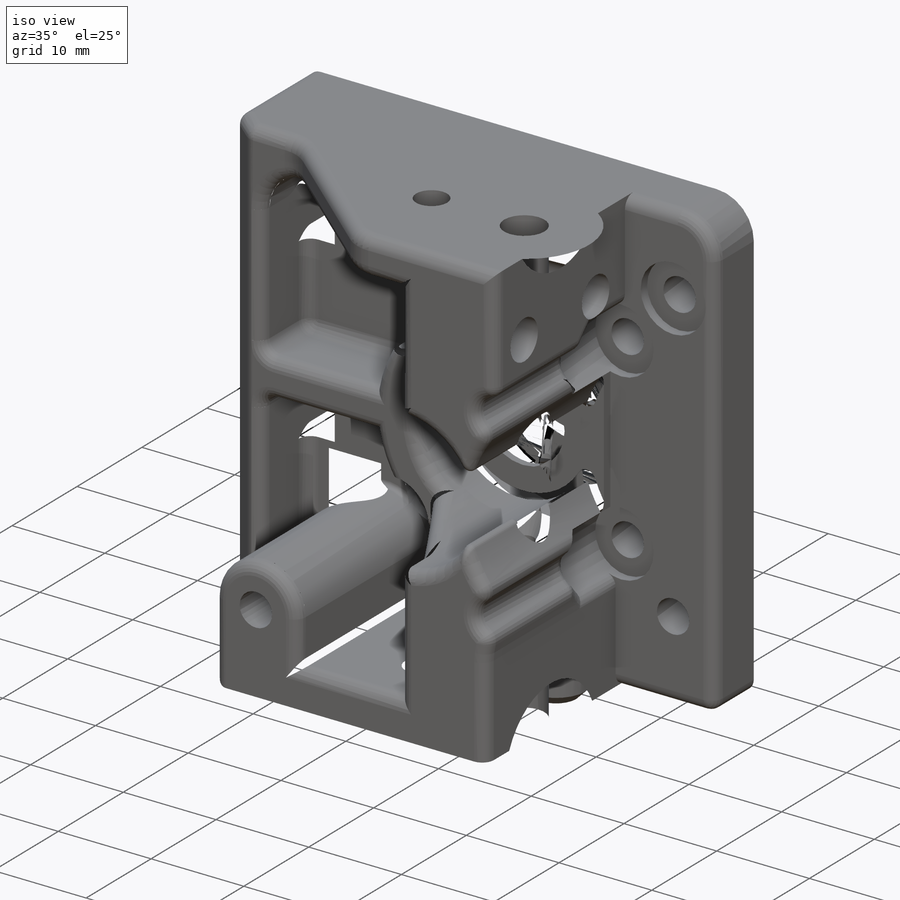
[diagram: iso view]
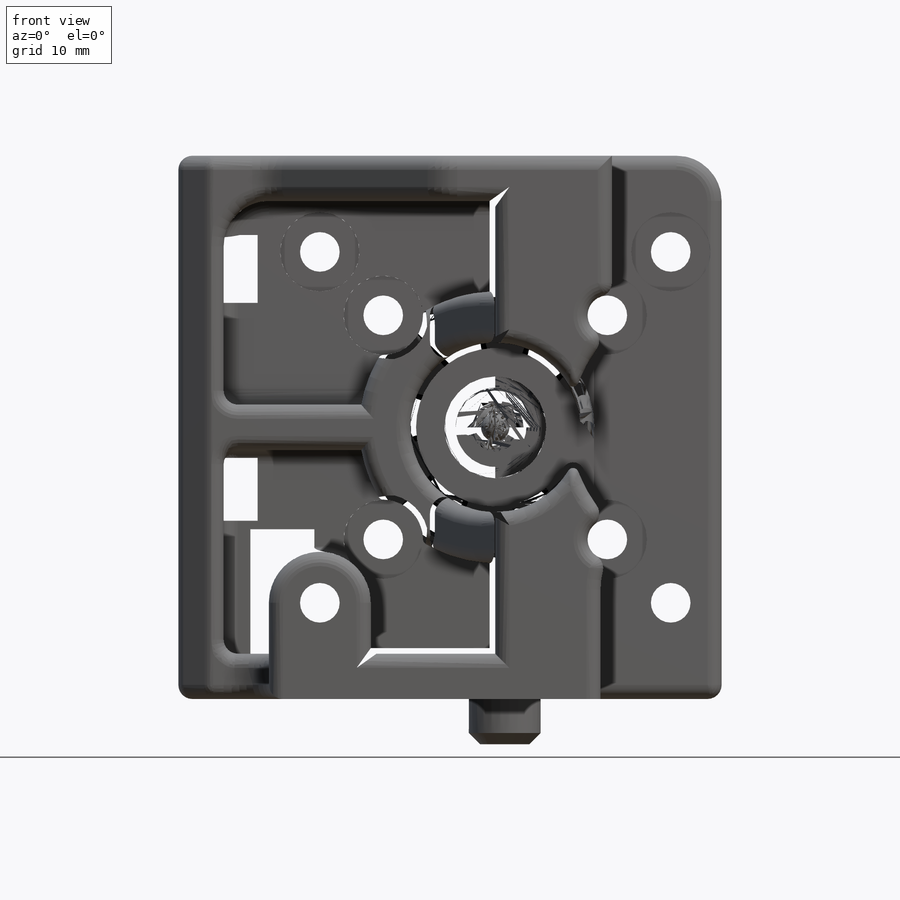
[diagram: front view]
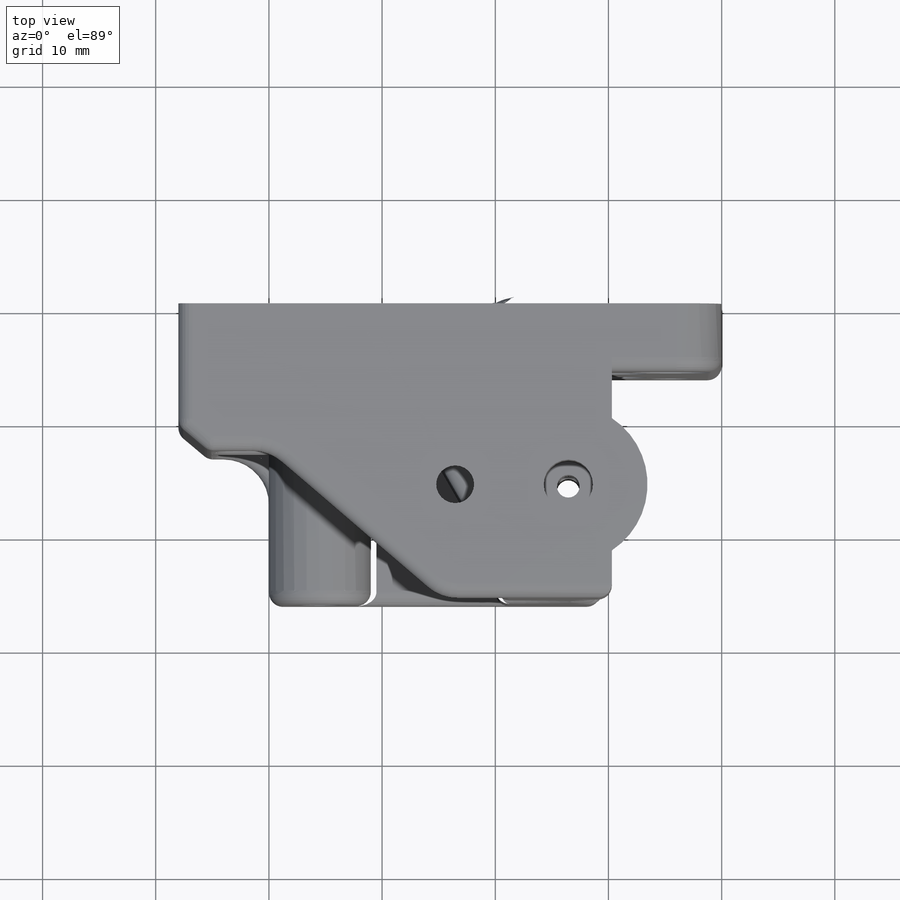
[diagram: top view]
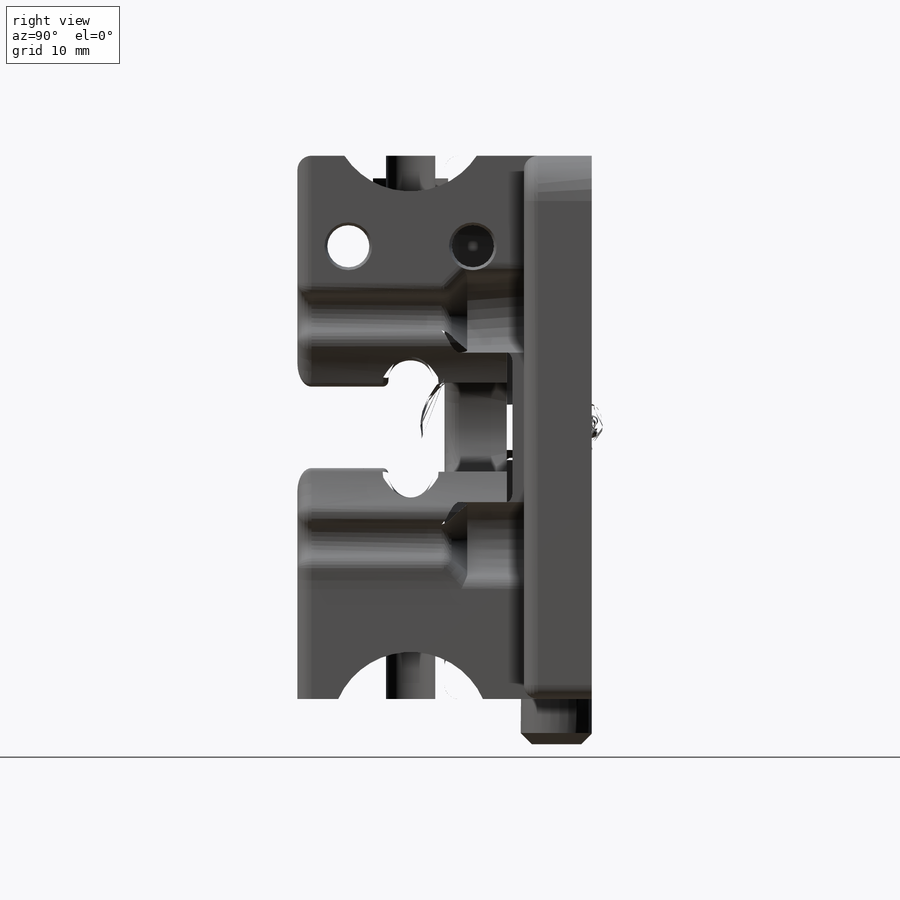
[diagram: right view]
SOLIDWORKS PART (.sldprt)
format: sldprt  version: not decoded by parser v0  size: 1,954,304 bytes
history: native  units: mm
features: sketch x25, cut_extrude x18, fillet x6, extrude x3, plane x2, cut_revolve x2, chamfer x2, revolve x2, material x1 (+13 scaffold rows collapsed)
feature tree (74):
  scaffold x13  (default folders/planes/origin — collapsed)
  material  "ABS"
  sketch  "Sketch1"  dims[c1.D1=4.0mm c1.D2=40.0mm c1.D3=24.0mm c1.D4=44.0mm c1.D5=20.0mm c2.D2=48.0mm c2.D1=4.0mm]
  extrude  "Boss-Extrude1"  Depth=26mm
  sketch  "Sketch2"  dims[c1.D2=24.0mm c1.D6=28.0mm c1.D8=7.0mm c1.D9=28.0mm c1.D10=~4.070553mm c1.D11=3.5mm c1.D12=9.0mm c1.D13=12.5mm c1.D14=23.0mm c1.D15=18.15mm c1.D1=24.0mm c1.D3=4.0mm c1.D4=2.0mm c1.D5=10.3mm c1.D7=44.0mm c2.D7=45.0deg c2.D9=15.5mm c2.D10=15.5mm c2.D15=18.15mm c2.D13=10.7mm c2.D16=1.2mm c2.D17=4.0mm]
  cut_extrude  "Cut-Extrude1"  Depth=6mm
  sketch  "Sketch3"  dims[c1.D3=3.5mm c1.D4=28.0mm c1.D5=28.0mm c2.D4=28.0mm c2.D5=3.5mm c2.D1=31.0mm c2.D2=31.0mm c2.D6=4.0]
  cut_extrude  "Cut-Extrude2"  [1 undecoded]
  plane  "Plane1"
  sketch  "Sketch6"  dims[D1=7.0mm D2=~6.366368mm]
  cut_extrude  "Cut-Extrude3"  Depth=5mm
  sketch  "Sketch7"
  cut_extrude  "Cut-Extrude4"  Depth=5mm
  sketch  "Sketch9"
  extrude  "Boss-Extrude4"  Depth=19mm
  sketch  "Sketch4"  dims[c1.D1=11.5mm c1.D2=2.2mm c1.D3=~3.709462mm c2.D3=120.0deg c2.D4=4.5mm c2.D5=7.5mm c2.D6=19.0mm]
  cut_revolve  "Cut-Revolve1"  Angle=360deg
  sketch  "Sketch10"  dims[D2=2.0mm D1=6.45mm]
  cut_extrude  "Cut-Extrude5"  [1 undecoded]
  plane  "Plane3"
  sketch  "Sketch11"  dims[c1.D1=~3.372254mm c2.D1=155.0deg c2.D2=2.0mm c2.D3=4.5mm]
  cut_revolve  "Cut-Revolve4"  Angle=360deg
  sketch  "Sketch12"  dims[D1=3.5mm D2=4.5mm]
  cut_extrude  "Cut-Extrude6"  [1 undecoded]
  sketch  "Sketch13"  dims[D1=5.75mm]
  cut_extrude  "Cut-Extrude7"  Depth=3mm
  sketch  "Sketch14"  dims[c1.D1=4.35mm c1.D2=3.35mm c1.D3=4.35mm c2.D1=~4.022309mm c2.D3=10.0mm]
  cut_extrude  "Cut-Extrude8"  Depth=10mm
  sketch  "Sketch25"
  cut_extrude  "Cut-Extrude16"  Depth=10mm
  sketch  "Sketch15"  dims[D1=5.75mm]
  cut_extrude  "Cut-Extrude9"  Depth=2mm
  sketch  "Sketch21"  dims[D1=7.0mm]
  cut_extrude  "Cut-Extrude14"  Depth=1mm
  sketch  "Sketch22"  dims[D1=12.0mm D2=38.0mm D3=10.0mm]
  cut_extrude  "Cut-Extrude15"  Depth=13mm
  sketch  "Sketch28"
  cut_extrude  "Cut-Extrude18"  [1 undecoded]
  sketch  "Sketch32"
  cut_extrude  "Cut-Extrude21"  [1 undecoded]
  fillet  "Fillet10"  Radius=4mm
  chamfer  "Chamfer1"  Distance=9.5mm Angle=30deg
  fillet  "Fillet6"  Radius=4mm
  fillet  "Fillet8"  Radius=1.25mm
  fillet  "Fillet9"  Radius=0.5mm
  sketch  "Sketch23"  dims[D1=14.0mm]
  revolve  "Revolve1"  Angle=90deg
  sketch  "Sketch24"  dims[D1=14.0mm]
  revolve  "Revolve2"  Angle=90deg
  sketch  "Sketch26"
  cut_extrude  "Cut-Extrude17"  Depth=12mm
  sketch  "Sketch29"  dims[D1=6.0mm]
  cut_extrude  "Cut-Extrude19"  Depth=10mm
  fillet  "Fillet11"  Radius=1mm
  sketch  "Sketch30"  dims[D1=6.35mm]
  extrude  "Boss-Extrude5"  Depth=4mm
  chamfer  "Chamfer2"  Distance=1mm Angle=45deg
  sketch  "Sketch31"  dims[D1=4.0mm D2=2.0mm D3=4.0mm D4=2.0mm]
  cut_extrude  "Cut-Extrude20"  [1 undecoded]
  fillet  "Fillet12"  Radius=1mm
  sketch  "Sketch33"
  cut_extrude  "Cut-Extrude22"  [1 undecoded]
decode coverage: 44 of 58 modeling features carry decoded parameters
note: ~ marks probable driven/reference dimensions
note: 7 parameter values undecoded
summary: no parameter record found for 7 features
note: suppression state not decoded; provenance and decode notes live in map.json
